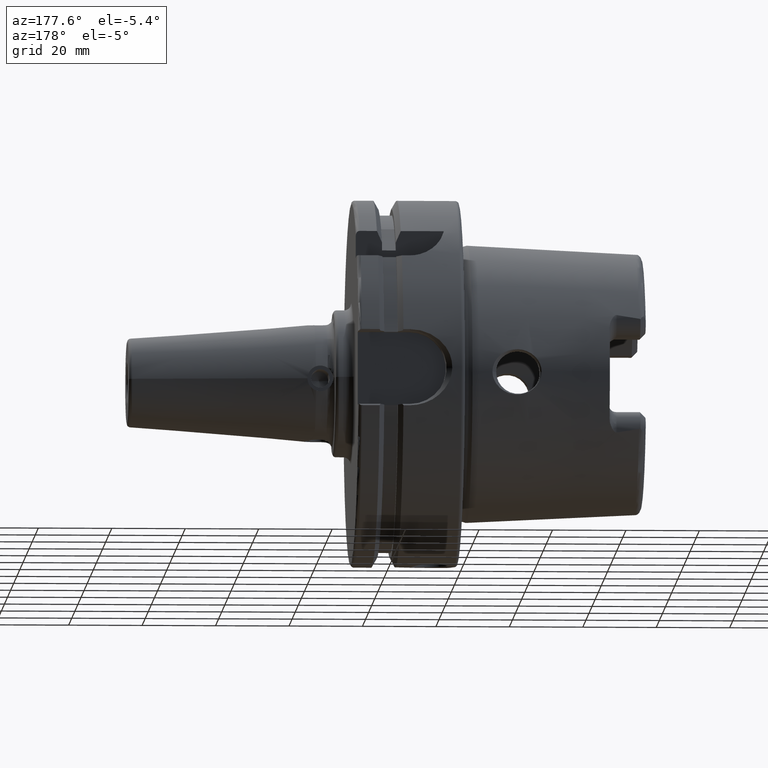
[diagram: clean part render]
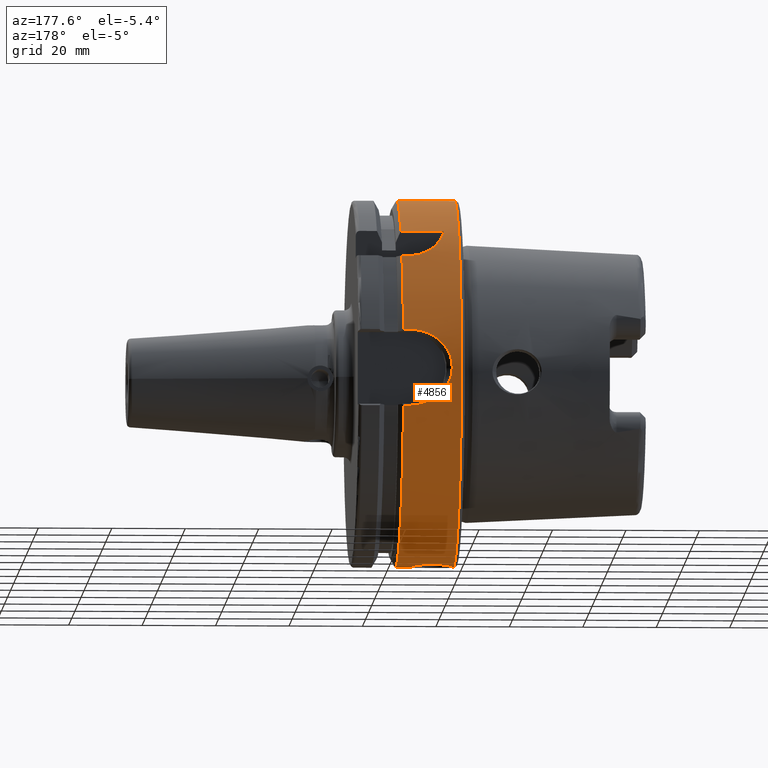
[diagram: same view with one face highlighted and labeled with its STEP entity id]
A machine part, auxiliary view. The second image highlights one B-rep face of the part: STEP entity #4856.
In plain terms, the highlighted cylindrical surface (partial cylindrical patch) has radius 50 mm, axis along (1, 0, 0).
Its self-contained STEP definition (entity closure, byte-faithful):
#1280=CARTESIAN_POINT('',(1.E0,0.E0,0.E0));
#1281=DIRECTION('',(-1.E0,0.E0,0.E0));
#1282=DIRECTION('',(0.E0,0.E0,1.E0));
#1283=AXIS2_PLACEMENT_3D('',#1280,#1281,#1282);
#1285=CARTESIAN_POINT('',(1.25E1,0.E0,-5.E1));
#1286=CARTESIAN_POINT('',(1.25E1,3.778943595394E-1,-5.E1));
#1287=CARTESIAN_POINT('',(1.241552995565E1,1.112180953334E0,-4.999153935829E1));
#1288=CARTESIAN_POINT('',(1.204844757987E1,2.168442314257E0,-4.995638783249E1));
#1289=CARTESIAN_POINT('',(1.146040278214E1,3.119820650258E0,-4.990518255566E1));
#1290=CARTESIAN_POINT('',(1.068459127933E1,3.929675979585E0,-4.984712975389E1));
#1291=CARTESIAN_POINT('',(9.739746990325E0,4.574081958789E0,-4.979131954418E1));
#1292=CARTESIAN_POINT('',(8.694273698276E0,5.010708320823E0,-4.974863623687E1));
#1293=CARTESIAN_POINT('',(7.574844063504E0,5.234530550767E0,-4.972525956249E1));
#1294=CARTESIAN_POINT('',(6.447232830870E0,5.236626386817E0,-4.972503502666E1));
#1295=CARTESIAN_POINT('',(5.327638827771E0,5.017372491163E0,-4.974795587974E1));
#1296=CARTESIAN_POINT('',(4.279994840832E0,4.584639394264E0,-4.979033185511E1));
#1297=CARTESIAN_POINT('',(3.334522085679E0,3.945527671669E0,-4.984585122519E1));
#1298=CARTESIAN_POINT('',(2.556150816686E0,3.140833848528E0,-4.990383428182E1));
#1299=CARTESIAN_POINT('',(1.963258598883E0,2.193135616887E0,-4.995530291893E1));
#1300=CARTESIAN_POINT('',(1.588214763384E0,1.132477334670E0,-4.999116265073E1));
#1301=CARTESIAN_POINT('',(1.5E0,3.859938730466E-1,-5.E1));
#1302=CARTESIAN_POINT('',(1.5E0,0.E0,-5.E1));
#1304=CARTESIAN_POINT('',(1.675240473581E1,0.E0,0.E0));
#1305=DIRECTION('',(1.E0,0.E0,0.E0));
#1306=DIRECTION('',(0.E0,0.E0,-1.E0));
#1307=AXIS2_PLACEMENT_3D('',#1304,#1305,#1306);
#1309=DIRECTION('',(1.E0,0.E0,0.E0));
#1310=VECTOR('',#1309,1.752404735808E0);
#1311=CARTESIAN_POINT('',(1.5E1,4.890531149727E1,-1.040531149727E1));
#1312=LINE('',#1311,#1310);
#1313=CARTESIAN_POINT('',(1.5E1,4.890531149727E1,1.040531149727E1));
#1314=CARTESIAN_POINT('',(1.420096084077E1,4.890531149727E1,1.040531149727E1));
#1315=CARTESIAN_POINT('',(1.264241797775E1,4.893716308221E1,1.025726351398E1));
#1316=CARTESIAN_POINT('',(1.037468058016E1,4.907197475196E1,9.601580095861E0));
#1317=CARTESIAN_POINT('',(8.322506106168E0,4.926900313185E1,8.548701051445E0));
#1318=CARTESIAN_POINT('',(6.571507157118E0,4.949176239187E1,7.165742953114E0));
#1319=CARTESIAN_POINT('',(5.191723572145E0,4.970197262346E1,5.541211452867E0));
#1320=CARTESIAN_POINT('',(4.210616564538E0,4.986947052540E1,3.762822124134E0));
#1321=CARTESIAN_POINT('',(3.628330011627E0,4.997581678157E1,1.899369813393E0));
#1322=CARTESIAN_POINT('',(3.435837281244E0,5.001209118449E1,
-2.100209315792E-6));
#1323=CARTESIAN_POINT('',(3.628320863414E0,4.997581848046E1,-1.899320098926E0));
#1324=CARTESIAN_POINT('',(4.210612886431E0,4.986947114225E1,-3.762821175031E0));
#1325=CARTESIAN_POINT('',(5.191724307382E0,4.970197250774E1,-5.541211088247E0));
#1326=CARTESIAN_POINT('',(6.571504547357E0,4.949176277337E1,-7.165740536075E0));
#1327=CARTESIAN_POINT('',(8.322504287237E0,4.926900331561E1,-8.548700012907E0));
#1328=CARTESIAN_POINT('',(1.037467915553E1,4.907197488372E1,-9.601579425522E0));
#1329=CARTESIAN_POINT('',(1.264241432424E1,4.893716323070E1,-1.025726281089E1));
#1330=CARTESIAN_POINT('',(1.420095931749E1,4.890531149727E1,-1.040531149727E1));
#1331=CARTESIAN_POINT('',(1.5E1,4.890531149727E1,-1.040531149727E1));
#1333=DIRECTION('',(1.E0,0.E0,0.E0));
#1334=VECTOR('',#1333,1.752404735808E0);
#1335=CARTESIAN_POINT('',(1.5E1,4.890531149727E1,1.040531149727E1));
#1336=LINE('',#1335,#1334);
#1337=CARTESIAN_POINT('',(1.675240473581E1,0.E0,0.E0));
#1338=DIRECTION('',(1.E0,0.E0,0.E0));
#1339=DIRECTION('',(0.E0,9.781062299454E-1,2.081062299454E-1));
#1340=AXIS2_PLACEMENT_3D('',#1337,#1338,#1339);
#1342=DIRECTION('',(1.E0,0.E0,0.E0));
#1343=VECTOR('',#1342,2.115504735808E0);
#1344=CARTESIAN_POINT('',(1.46369E1,3.882975663071E1,3.15E1));
#1345=LINE('',#1344,#1343);
#1346=CARTESIAN_POINT('',(5.000002140795E0,3.15E1,3.882975663071E1));
#1347=CARTESIAN_POINT('',(5.055889472180E0,3.174863021071E1,3.862805947067E1));
#1348=CARTESIAN_POINT('',(5.181937876859E0,3.223899721283E1,3.822233349918E1));
#1349=CARTESIAN_POINT('',(5.417208282403E0,3.295331120732E1,3.760813120865E1));
#1350=CARTESIAN_POINT('',(5.703251119495E0,3.364682856062E1,3.698883752947E1));
#1351=CARTESIAN_POINT('',(6.044180689386E0,3.431706538354E1,3.636775273358E1));
#1352=CARTESIAN_POINT('',(6.450437354306E0,3.497087285674E1,3.573953343160E1));
#1353=CARTESIAN_POINT('',(6.943754644166E0,3.562025616571E1,3.509245800244E1));
#1354=CARTESIAN_POINT('',(7.549093247125E0,3.626691877850E1,3.442392779312E1));
#1355=CARTESIAN_POINT('',(8.310467576955E0,3.691328497411E1,3.372989464729E1));
#1356=CARTESIAN_POINT('',(9.250334722616E0,3.752752865023E1,3.304465055354E1));
#1357=CARTESIAN_POINT('',(1.039604464717E1,3.807699029020E1,3.240896198301E1));
#1358=CARTESIAN_POINT('',(1.173597705279E1,3.851003997132E1,3.189164502015E1));
#1359=CARTESIAN_POINT('',(1.319842847069E1,3.877513467418E1,3.156754133256E1));
#1360=CARTESIAN_POINT('',(1.415492168725E1,3.882975663071E1,3.15E1));
#1361=CARTESIAN_POINT('',(1.46369E1,3.882975663071E1,3.15E1));
#1363=DIRECTION('',(1.E0,0.E0,0.E0));
#1364=VECTOR('',#1363,1.175240259501E1);
#1365=CARTESIAN_POINT('',(5.000002140795E0,3.15E1,3.882975663071E1));
#1366=LINE('',#1365,#1364);
#1367=CARTESIAN_POINT('',(1.675240473581E1,0.E0,0.E0));
#1368=DIRECTION('',(1.E0,0.E0,0.E0));
#1369=DIRECTION('',(0.E0,6.3E-1,7.765951326142E-1));
#1370=AXIS2_PLACEMENT_3D('',#1367,#1368,#1369);
#1401=DIRECTION('',(-1.E0,-1.567059371289E-13,0.E0));
#1402=VECTOR('',#1401,1.575240473581E1);
#1403=CARTESIAN_POINT('',(1.675240473581E1,-1.020538999289E-14,5.E1));
#1404=LINE('',#1403,#1402);
#1453=DIRECTION('',(-1.E0,0.E0,0.E0));
#1454=VECTOR('',#1453,4.252404735808E0);
#1455=CARTESIAN_POINT('',(1.675240473581E1,0.E0,-5.E1));
#1456=LINE('',#1455,#1454);
#1476=DIRECTION('',(-1.E0,-6.288053411296E-12,0.E0));
#1477=VECTOR('',#1476,5.E-1);
#1478=CARTESIAN_POINT('',(1.5E0,0.E0,-5.E1));
#1479=LINE('',#1478,#1477);
#3027=CARTESIAN_POINT('',(5.000002140795E0,3.15E1,3.882975663071E1));
#3028=CARTESIAN_POINT('',(1.675240473581E1,3.15E1,3.882975663071E1));
#3029=VERTEX_POINT('',#3027);
#3030=VERTEX_POINT('',#3028);
#3031=CARTESIAN_POINT('',(1.46369E1,3.882975663071E1,3.15E1));
#3032=CARTESIAN_POINT('',(1.675240473581E1,3.882975663071E1,3.15E1));
#3033=VERTEX_POINT('',#3031);
#3034=VERTEX_POINT('',#3032);
#3051=CARTESIAN_POINT('',(1.675240473581E1,0.E0,5.E1));
#3052=VERTEX_POINT('',#3051);
#3202=VERTEX_POINT('',#1285);
#3203=VERTEX_POINT('',#1302);
#3208=CARTESIAN_POINT('',(1.675240473581E1,0.E0,-5.E1));
#3209=VERTEX_POINT('',#3208);
#3232=CARTESIAN_POINT('',(1.5E1,4.890531149727E1,1.040531149727E1));
#3233=CARTESIAN_POINT('',(1.675240473581E1,4.890531149727E1,1.040531149727E1));
#3234=VERTEX_POINT('',#3232);
#3235=VERTEX_POINT('',#3233);
#3236=VERTEX_POINT('',#1331);
#3237=CARTESIAN_POINT('',(1.675240473581E1,4.890531149727E1,-1.040531149727E1));
#3238=VERTEX_POINT('',#3237);
#3274=CARTESIAN_POINT('',(1.E0,0.E0,-5.E1));
#3275=CARTESIAN_POINT('',(1.E0,-1.224646799147E-14,5.E1));
#3276=VERTEX_POINT('',#3274);
#3277=VERTEX_POINT('',#3275);
#4822=CARTESIAN_POINT('',(0.E0,0.E0,0.E0));
#4823=DIRECTION('',(1.E0,0.E0,0.E0));
#4824=DIRECTION('',(0.E0,0.E0,1.E0));
#4825=AXIS2_PLACEMENT_3D('',#4822,#4823,#4824);
#4826=CYLINDRICAL_SURFACE('',#4825,5.E1);
#4827=ORIENTED_EDGE('',*,*,#4816,.T.);
#4829=ORIENTED_EDGE('',*,*,#4828,.F.);
#4831=ORIENTED_EDGE('',*,*,#4830,.F.);
#4833=ORIENTED_EDGE('',*,*,#4832,.F.);
#4835=ORIENTED_EDGE('',*,*,#4834,.T.);
#4837=ORIENTED_EDGE('',*,*,#4836,.F.);
#4839=ORIENTED_EDGE('',*,*,#4838,.F.);
#4841=ORIENTED_EDGE('',*,*,#4840,.T.);
#4843=ORIENTED_EDGE('',*,*,#4842,.T.);
#4845=ORIENTED_EDGE('',*,*,#4844,.F.);
#4847=ORIENTED_EDGE('',*,*,#4846,.F.);
#4849=ORIENTED_EDGE('',*,*,#4848,.T.);
#4851=ORIENTED_EDGE('',*,*,#4850,.T.);
#4853=ORIENTED_EDGE('',*,*,#4852,.T.);
#4854=EDGE_LOOP('',(#4827,#4829,#4831,#4833,#4835,#4837,#4839,#4841,#4843,#4845,
#4847,#4849,#4851,#4853));
#4855=FACE_OUTER_BOUND('',#4854,.F.);
#4856=ADVANCED_FACE('',(#4855),#4826,.T.);
#1284=CIRCLE('',#1283,5.E1);
#1303=B_SPLINE_CURVE_WITH_KNOTS('',3,(#1285,#1286,#1287,#1288,#1289,#1290,#1291,
#1292,#1293,#1294,#1295,#1296,#1297,#1298,#1299,#1300,#1301,#1302),
.UNSPECIFIED.,.F.,.F.,(4,1,1,1,1,1,1,1,1,1,1,1,1,1,1,4),(0.E0,6.666666666667E-2,
1.333333333333E-1,2.E-1,2.666666666667E-1,3.333333333333E-1,4.E-1,
4.666666666667E-1,5.333333333333E-1,6.E-1,6.666666666667E-1,7.333333333333E-1,
8.E-1,8.666666666667E-1,9.333333333333E-1,1.E0),.UNSPECIFIED.);
#1308=CIRCLE('',#1307,5.E1);
#1332=B_SPLINE_CURVE_WITH_KNOTS('',3,(#1313,#1314,#1315,#1316,#1317,#1318,#1319,
#1320,#1321,#1322,#1323,#1324,#1325,#1326,#1327,#1328,#1329,#1330,#1331),
.UNSPECIFIED.,.F.,.F.,(4,1,1,1,1,1,1,1,1,1,1,1,1,1,1,1,4),(0.E0,6.25E-2,1.25E-1,
1.875E-1,2.5E-1,3.125E-1,3.75E-1,4.375E-1,5.E-1,5.625E-1,6.25E-1,6.875E-1,
7.5E-1,8.125E-1,8.75E-1,9.375E-1,1.E0),.UNSPECIFIED.);
#1341=CIRCLE('',#1340,5.E1);
#1362=B_SPLINE_CURVE_WITH_KNOTS('',3,(#1346,#1347,#1348,#1349,#1350,#1351,#1352,
#1353,#1354,#1355,#1356,#1357,#1358,#1359,#1360,#1361),.UNSPECIFIED.,.F.,.F.,(4,
1,1,1,1,1,1,1,1,1,1,1,1,4),(0.E0,7.692307692308E-2,1.538461538462E-1,
2.307692307692E-1,3.076923076923E-1,3.846153846154E-1,4.615384615385E-1,
5.384615384615E-1,6.153846153846E-1,6.923076923077E-1,7.692307692308E-1,
8.461538461538E-1,9.230769230769E-1,1.E0),.UNSPECIFIED.);
#1371=CIRCLE('',#1370,5.E1);
#4816=EDGE_CURVE('',#3277,#3276,#1284,.T.);
#4828=EDGE_CURVE('',#3203,#3276,#1479,.T.);
#4830=EDGE_CURVE('',#3202,#3203,#1303,.T.);
#4832=EDGE_CURVE('',#3209,#3202,#1456,.T.);
#4834=EDGE_CURVE('',#3209,#3238,#1308,.T.);
#4836=EDGE_CURVE('',#3236,#3238,#1312,.T.);
#4838=EDGE_CURVE('',#3234,#3236,#1332,.T.);
#4840=EDGE_CURVE('',#3234,#3235,#1336,.T.);
#4842=EDGE_CURVE('',#3235,#3034,#1341,.T.);
#4844=EDGE_CURVE('',#3033,#3034,#1345,.T.);
#4846=EDGE_CURVE('',#3029,#3033,#1362,.T.);
#4848=EDGE_CURVE('',#3029,#3030,#1366,.T.);
#4850=EDGE_CURVE('',#3030,#3052,#1371,.T.);
#4852=EDGE_CURVE('',#3052,#3277,#1404,.T.);